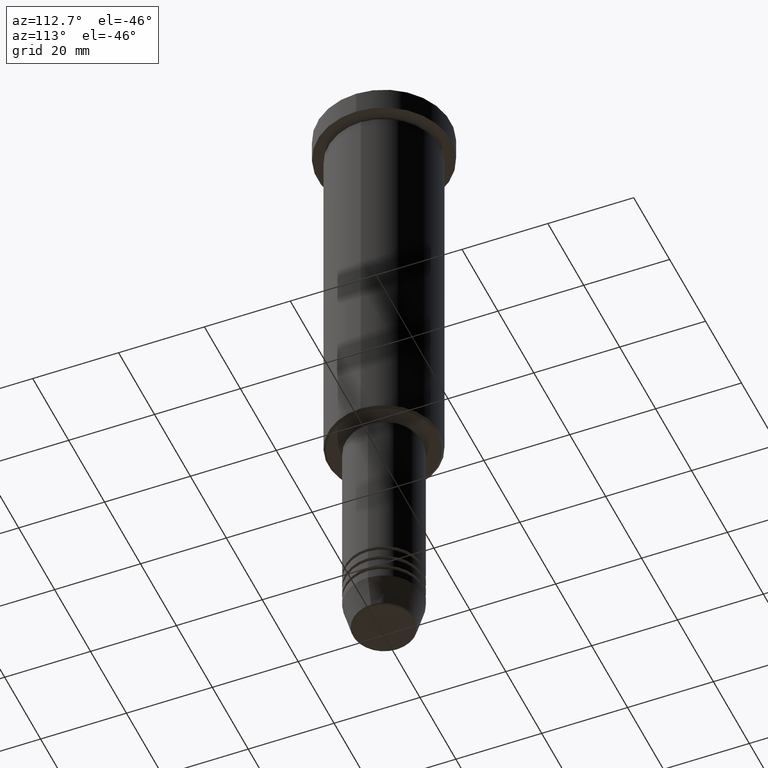
[diagram: clean part render]
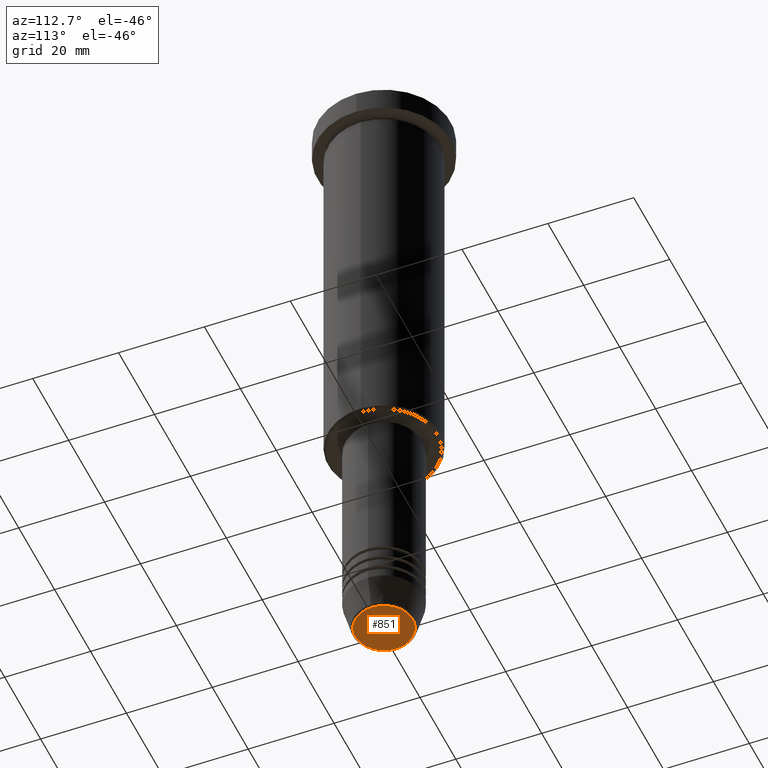
[diagram: same view with one face highlighted and labeled with its STEP entity id]
A machine part, auxiliary view. The second image highlights one B-rep face of the part: STEP entity #851.
In plain terms, the highlighted planar face has unit normal (0, -0, 1).
Its self-contained STEP definition (entity closure, byte-faithful):
#68 = ORIENTED_EDGE ( 'NONE', *, *, #1020, .T. ) ;
#119 = CARTESIAN_POINT ( 'NONE',  ( 0.000000000000000000, 0.000000000000000000, -151.0000000000000284 ) ) ;
#125 = AXIS2_PLACEMENT_3D ( 'NONE', #119, #768, #308 ) ;
#127 = AXIS2_PLACEMENT_3D ( 'NONE', #236, #622, #528 ) ;
#153 = DIRECTION ( 'NONE',  ( 0.000000000000000000, 0.000000000000000000, -1.000000000000000000 ) ) ;
#236 = CARTESIAN_POINT ( 'NONE',  ( 0.000000000000000000, 0.000000000000000000, -151.0000000000000284 ) ) ;
#308 = DIRECTION ( 'NONE',  ( 1.000000000000000000, 0.000000000000000000, 0.000000000000000000 ) ) ;
#351 = EDGE_CURVE ( 'NONE', #1028, #420, #512, .T. ) ;
#418 = DIRECTION ( 'NONE',  ( 1.000000000000000000, 0.000000000000000000, 0.000000000000000000 ) ) ;
#420 = VERTEX_POINT ( 'NONE', #1048 ) ;
#512 = CIRCLE ( 'NONE', #1041, 6.740692158992658278 ) ;
#520 = PLANE ( 'NONE',  #127 ) ;
#528 = DIRECTION ( 'NONE',  ( 1.000000000000000000, 0.000000000000000000, 0.000000000000000000 ) ) ;
#608 = CARTESIAN_POINT ( 'NONE',  ( 0.000000000000000000, 0.000000000000000000, -151.0000000000000284 ) ) ;
#622 = DIRECTION ( 'NONE',  ( 0.000000000000000000, -0.000000000000000000, 1.000000000000000000 ) ) ;
#645 = ORIENTED_EDGE ( 'NONE', *, *, #351, .T. ) ;
#768 = DIRECTION ( 'NONE',  ( 0.000000000000000000, 0.000000000000000000, -1.000000000000000000 ) ) ;
#851 = ADVANCED_FACE ( 'NONE', ( #971 ), #520, .F. ) ;
#971 = FACE_OUTER_BOUND ( 'NONE', #998, .T. ) ;
#998 = EDGE_LOOP ( 'NONE', ( #68, #645 ) ) ;
#1020 = EDGE_CURVE ( 'NONE', #420, #1028, #1116, .T. ) ;
#1028 = VERTEX_POINT ( 'NONE', #1137 ) ;
#1041 = AXIS2_PLACEMENT_3D ( 'NONE', #608, #153, #418 ) ;
#1048 = CARTESIAN_POINT ( 'NONE',  ( 6.740692158992658278, 0.000000000000000000, -151.0000000000000284 ) ) ;
#1116 = CIRCLE ( 'NONE', #125, 6.740692158992658278 ) ;
#1137 = CARTESIAN_POINT ( 'NONE',  ( -6.740692158992658278, 8.550696569392685681E-16, -151.0000000000000284 ) ) ;